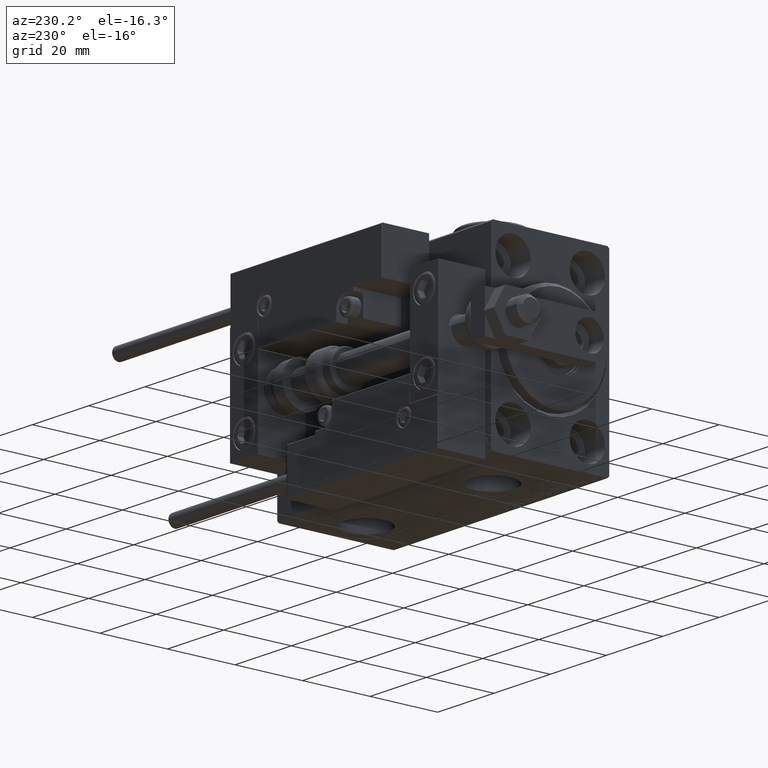
[diagram: clean part render]
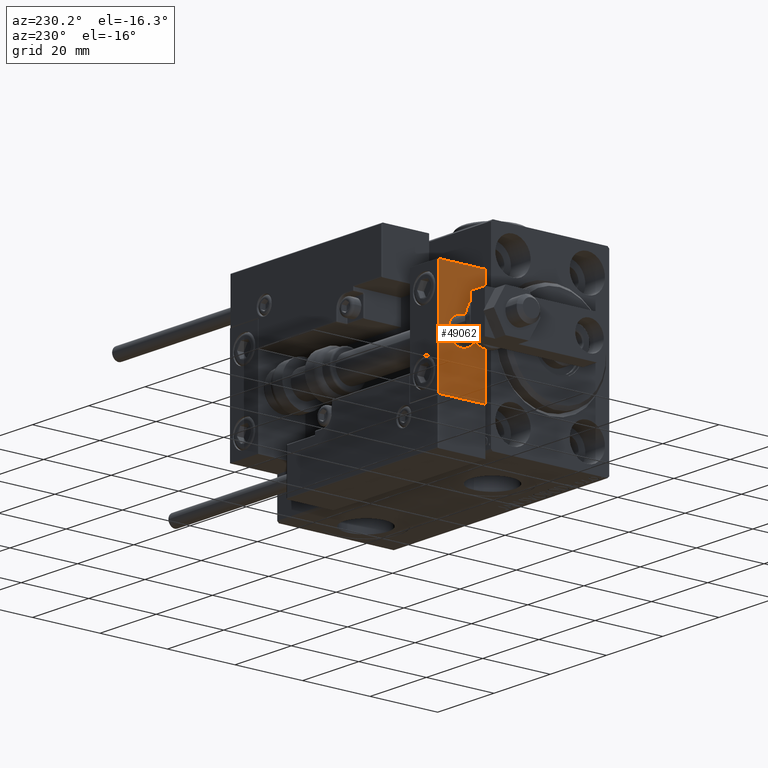
[diagram: same view with one face highlighted and labeled with its STEP entity id]
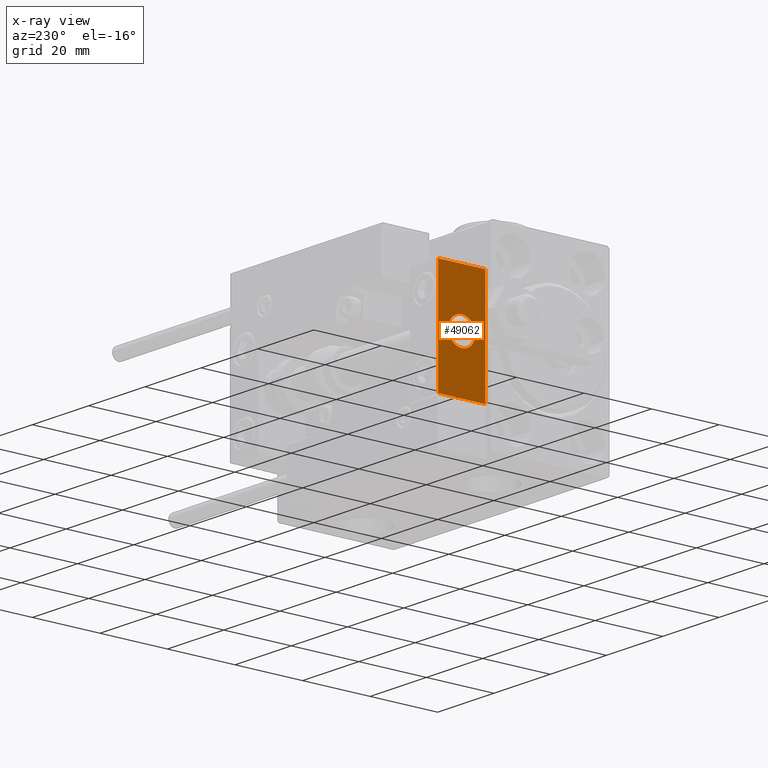
[diagram: x-ray of the same camera — body ghosted, the highlighted face saturated]
A machine part, auxiliary view. The second image highlights one B-rep face of the part: STEP entity #49062.
The next image is the same camera in x-ray: the body ghosted, the highlighted face saturated — about 4% of this face is hidden behind the body in this view.
In plain terms, the highlighted planar face has unit normal (1, 0, -0).
Its self-contained STEP definition (entity closure, byte-faithful):
#3216 = CIRCLE ( 'NONE', #9848, 4.000000000000000000 ) ;
#4212 = EDGE_LOOP ( 'NONE', ( #50210, #24358 ) ) ;
#5002 = FACE_BOUND ( 'NONE', #4212, .T. ) ;
#6071 = VERTEX_POINT ( 'NONE', #32048 ) ;
#9848 = AXIS2_PLACEMENT_3D ( 'NONE', #26027, #26542, #41937 ) ;
#10450 = AXIS2_PLACEMENT_3D ( 'NONE', #51107, #44059, #19304 ) ;
#11434 = ORIENTED_EDGE ( 'NONE', *, *, #14623, .T. ) ;
#14623 = EDGE_CURVE ( 'NONE', #37980, #40624, #19713, .T. ) ;
#15004 = CARTESIAN_POINT ( 'NONE',  ( 10.00000000000000000, 7.000000000000000000, -16.00000000000000711 ) ) ;
#15534 = CARTESIAN_POINT ( 'NONE',  ( 10.00000000000000000, -7.000000000000000000, 15.99999999999999289 ) ) ;
#16413 = CARTESIAN_POINT ( 'NONE',  ( 10.00000000000000000, 7.000000000000000000, 15.99999999999999289 ) ) ;
#16781 = CARTESIAN_POINT ( 'NONE',  ( 10.00000000000000000, -7.000000000000000000, -16.00000000000000711 ) ) ;
#17506 = DIRECTION ( 'NONE',  ( -0.000000000000000000, 0.000000000000000000, 1.000000000000000000 ) ) ;
#18089 = EDGE_CURVE ( 'NONE', #50195, #29345, #3216, .T. ) ;
#19155 = EDGE_CURVE ( 'NONE', #6071, #40624, #33820, .T. ) ;
#19255 = VECTOR ( 'NONE', #28323, 1000.000000000000000 ) ;
#19304 = DIRECTION ( 'NONE',  ( 0.000000000000000000, 0.000000000000000000, 1.000000000000000000 ) ) ;
#19713 = LINE ( 'NONE', #15534, #19255 ) ;
#21594 = LINE ( 'NONE', #26012, #32986 ) ;
#21625 = ORIENTED_EDGE ( 'NONE', *, *, #19155, .F. ) ;
#22381 = VECTOR ( 'NONE', #30665, 1000.000000000000000 ) ;
#24358 = ORIENTED_EDGE ( 'NONE', *, *, #48464, .T. ) ;
#26012 = CARTESIAN_POINT ( 'NONE',  ( 10.00000000000000000, 7.000000000000000000, 15.99999999999999289 ) ) ;
#26027 = CARTESIAN_POINT ( 'NONE',  ( 10.00000000000000000, 0.000000000000000000, 0.000000000000000000 ) ) ;
#26542 = DIRECTION ( 'NONE',  ( -1.000000000000000000, 0.000000000000000000, 0.000000000000000000 ) ) ;
#28323 = DIRECTION ( 'NONE',  ( 0.000000000000000000, 0.000000000000000000, -1.000000000000000000 ) ) ;
#28556 = EDGE_LOOP ( 'NONE', ( #11434, #21625, #34102, #37210 ) ) ;
#29345 = VERTEX_POINT ( 'NONE', #37494 ) ;
#29548 = VERTEX_POINT ( 'NONE', #35289 ) ;
#30665 = DIRECTION ( 'NONE',  ( 0.000000000000000000, -1.000000000000000000, 0.000000000000000000 ) ) ;
#32048 = CARTESIAN_POINT ( 'NONE',  ( 10.00000000000000000, 7.000000000000000000, -16.00000000000000711 ) ) ;
#32986 = VECTOR ( 'NONE', #42181, 1000.000000000000000 ) ;
#33176 = PLANE ( 'NONE',  #37990 ) ;
#33435 = DIRECTION ( 'NONE',  ( -1.000000000000000000, 0.000000000000000000, -0.000000000000000000 ) ) ;
#33820 = LINE ( 'NONE', #15004, #22381 ) ;
#34102 = ORIENTED_EDGE ( 'NONE', *, *, #41645, .F. ) ;
#35289 = CARTESIAN_POINT ( 'NONE',  ( 10.00000000000000000, 7.000000000000000000, 15.99999999999999289 ) ) ;
#36504 = DIRECTION ( 'NONE',  ( 0.000000000000000000, -1.000000000000000000, 0.000000000000000000 ) ) ;
#37210 = ORIENTED_EDGE ( 'NONE', *, *, #45885, .T. ) ;
#37494 = CARTESIAN_POINT ( 'NONE',  ( 10.00000000000000000, 4.898587196589412829E-16, -4.000000000000000000 ) ) ;
#37980 = VERTEX_POINT ( 'NONE', #50880 ) ;
#37990 = AXIS2_PLACEMENT_3D ( 'NONE', #48812, #33435, #17506 ) ;
#40624 = VERTEX_POINT ( 'NONE', #16781 ) ;
#41645 = EDGE_CURVE ( 'NONE', #29548, #6071, #21594, .T. ) ;
#41937 = DIRECTION ( 'NONE',  ( 0.000000000000000000, 0.000000000000000000, 1.000000000000000000 ) ) ;
#42181 = DIRECTION ( 'NONE',  ( 0.000000000000000000, 0.000000000000000000, -1.000000000000000000 ) ) ;
#44059 = DIRECTION ( 'NONE',  ( -1.000000000000000000, 0.000000000000000000, 0.000000000000000000 ) ) ;
#44898 = FACE_OUTER_BOUND ( 'NONE', #28556, .T. ) ;
#45072 = CARTESIAN_POINT ( 'NONE',  ( 10.00000000000000000, 0.000000000000000000, 4.000000000000000000 ) ) ;
#45472 = CIRCLE ( 'NONE', #10450, 4.000000000000000000 ) ;
#45885 = EDGE_CURVE ( 'NONE', #29548, #37980, #47975, .T. ) ;
#47885 = VECTOR ( 'NONE', #36504, 1000.000000000000000 ) ;
#47975 = LINE ( 'NONE', #16413, #47885 ) ;
#48464 = EDGE_CURVE ( 'NONE', #29345, #50195, #45472, .T. ) ;
#48812 = CARTESIAN_POINT ( 'NONE',  ( 10.00000000000000000, 0.000000000000000000, 0.000000000000000000 ) ) ;
#49062 = ADVANCED_FACE ( 'NONE', ( #5002, #44898 ), #33176, .F. ) ;
#50195 = VERTEX_POINT ( 'NONE', #45072 ) ;
#50210 = ORIENTED_EDGE ( 'NONE', *, *, #18089, .T. ) ;
#50880 = CARTESIAN_POINT ( 'NONE',  ( 10.00000000000000000, -7.000000000000000000, 15.99999999999999289 ) ) ;
#51107 = CARTESIAN_POINT ( 'NONE',  ( 10.00000000000000000, 0.000000000000000000, 0.000000000000000000 ) ) ;